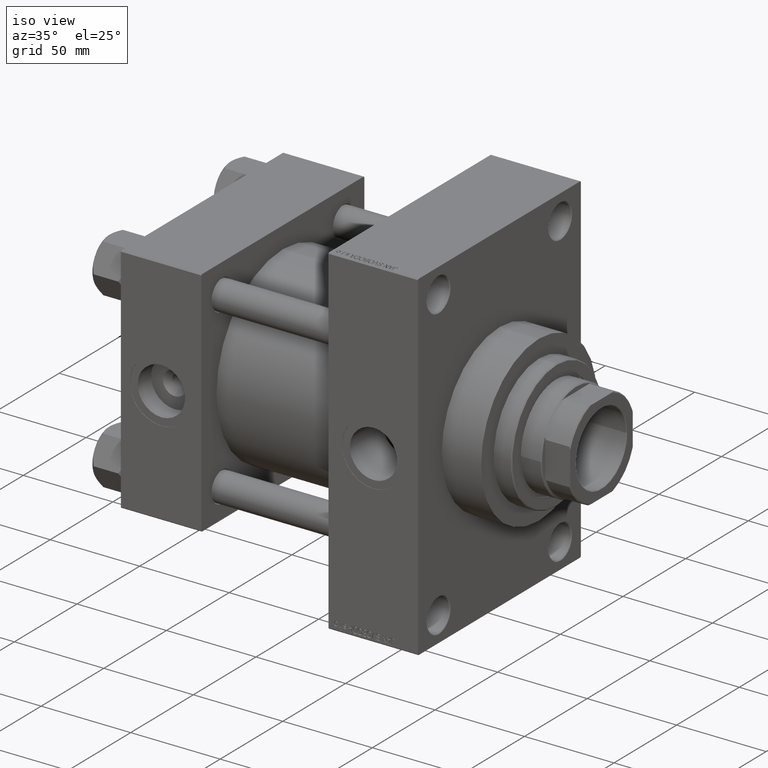
[diagram: clean part render]
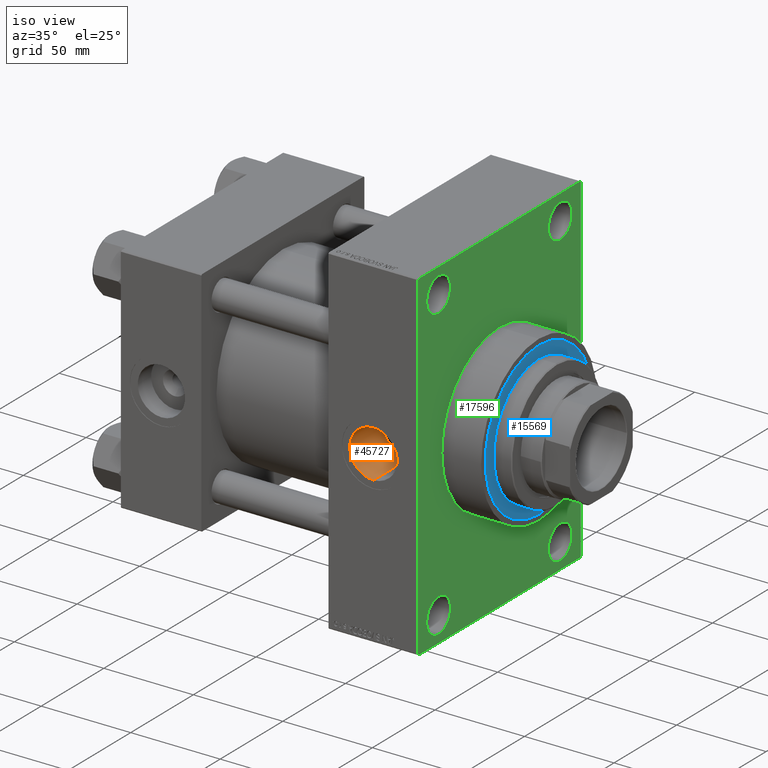
[diagram: same view with three faces highlighted in distinct colors, each labeled with its STEP entity id]
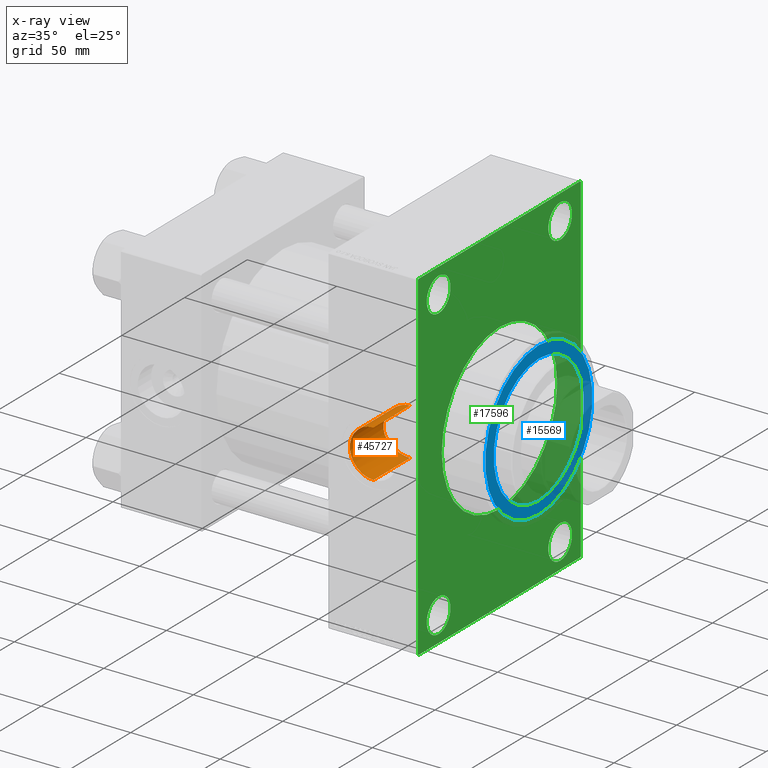
[diagram: x-ray of the same camera — body ghosted, the three highlighted faces saturated]
A machine part, iso view with three faces highlighted in distinct colors.
The next image is the same camera in x-ray (body ghosted, the three faces saturated) — at least one of them is partly hidden behind the body in this view.
Their STEP definitions:

[orange] entity #45727 — the highlighted cylindrical surface (edge-blend (fillet) strip) has radius 13.22 mm, axis along (-0, -1, -0).
#501 = CARTESIAN_POINT ( 'NONE',  ( 141.0000000000000000, -64.80000000000001137, 1.734723475976770117E-17 ) ) ;
#2172 = CARTESIAN_POINT ( 'NONE',  ( 130.5146734941103261, -37.13629440160352146, 8.063019086415920356 ) ) ;
#2398 = CARTESIAN_POINT ( 'NONE',  ( 134.3703066741389591, -36.23592758460590346, 11.44569766195575689 ) ) ;
#2654 = CARTESIAN_POINT ( 'NONE',  ( 138.8280194967578041, -35.68986785518497129, 13.04766972071312203 ) ) ;
#2886 = CARTESIAN_POINT ( 'NONE',  ( 140.1190169097856995, -35.62627681922432288, -13.22000000000001307 ) ) ;
#3116 = CARTESIAN_POINT ( 'NONE',  ( 129.1278933428737901, -37.55103809794253067, -5.878955579267242548 ) ) ;
#3345 = ORIENTED_EDGE ( 'NONE', *, *, #17284, .T. ) ;
#3450 = VERTEX_POINT ( 'NONE', #31617 ) ;
#5802 = CARTESIAN_POINT ( 'NONE',  ( 127.7804093929018308, -37.99985757437788436, -0.8764856372642163551 ) ) ;
#6026 = CARTESIAN_POINT ( 'NONE',  ( 127.8879070610560404, -37.96257270537368100, 1.741974378403175594 ) ) ;
#6258 = CARTESIAN_POINT ( 'NONE',  ( 136.7183503207495221, -35.87400679081884647, 12.53704956190560260 ) ) ;
#6444 = AXIS2_PLACEMENT_3D ( 'NONE', #22706, #22952, #18611 ) ;
#6450 = VECTOR ( 'NONE', #45626, 1000.000000000000000 ) ;
#7778 = VERTEX_POINT ( 'NONE', #9316 ) ;
#8417 = ORIENTED_EDGE ( 'NONE', *, *, #35617, .F. ) ;
#9316 = CARTESIAN_POINT ( 'NONE',  ( 141.0000000000000000, -64.80000000000001137, 13.22000000000001307 ) ) ;
#9409 = CARTESIAN_POINT ( 'NONE',  ( 128.9638084280566090, -37.60420653300685956, 5.485313167481641550 ) ) ;
#9648 = CARTESIAN_POINT ( 'NONE',  ( 128.2085236598010738, -37.85271147533390490, 3.449596577529353336 ) ) ;
#9877 = CARTESIAN_POINT ( 'NONE',  ( 135.1354249478940801, -36.10377895544482385, 11.85595158652744274 ) ) ;
#10112 = CARTESIAN_POINT ( 'NONE',  ( 137.9800961387033453, -35.75153119464909679, -12.87774046841736109 ) ) ;
#10131 = EDGE_CURVE ( 'NONE', #7778, #3450, #15648, .T. ) ;
#10221 = VERTEX_POINT ( 'NONE', #26316 ) ;
#10351 = CARTESIAN_POINT ( 'NONE',  ( 136.7252804533873416, -35.87942272375020991, -12.51739683785893753 ) ) ;
#10916 = EDGE_LOOP ( 'NONE', ( #3345, #43199, #22683, #8417 ) ) ;
#11015 = CARTESIAN_POINT ( 'NONE',  ( 141.0000000000000000, 65.00100000000004741, -13.22000000000000064 ) ) ;
#11048 = CARTESIAN_POINT ( 'NONE',  ( 141.0000000000000000, -35.62627681922430867, 13.22000000000001663 ) ) ;
#11580 = DIRECTION ( 'NONE',  ( 0.000000000000000000, 0.000000000000000000, -1.000000000000000000 ) ) ;
#13016 = CARTESIAN_POINT ( 'NONE',  ( 127.8659173751080260, -37.96985467156528671, -1.739185598572455582 ) ) ;
#13250 = CARTESIAN_POINT ( 'NONE',  ( 128.6313985517845992, -37.71192633933637239, -4.687350745410441277 ) ) ;
#13496 = CARTESIAN_POINT ( 'NONE',  ( 132.9355450113205563, -36.52618442471469962, -10.48420518286915204 ) ) ;
#13725 = CARTESIAN_POINT ( 'NONE',  ( 140.1323834192861568, -35.63420210679617384, 13.19870196333621593 ) ) ;
#13960 = CARTESIAN_POINT ( 'NONE',  ( 130.5007977352728972, -37.13827399726411471, -8.080194625558590360 ) ) ;
#15648 = CIRCLE ( 'NONE', #17211, 13.22000000000001307 ) ;
#16880 = CARTESIAN_POINT ( 'NONE',  ( 131.0624114887139910, -36.98537488477167301, 8.729185718231464719 ) ) ;
#17211 = AXIS2_PLACEMENT_3D ( 'NONE', #501, #33810, #11580 ) ;
#17284 = EDGE_CURVE ( 'NONE', #30084, #10221, #17657, .T. ) ;
#17363 = CARTESIAN_POINT ( 'NONE',  ( 139.2646285187691149, -35.66588167191071079, 13.11285544304653961 ) ) ;
#17590 = CARTESIAN_POINT ( 'NONE',  ( 135.1149856990954277, -36.10041443999153898, -11.86944143279898078 ) ) ;
#17657 = B_SPLINE_CURVE_WITH_KNOTS ( 'NONE', 3,
 ( #35250, #2886, #42494, #10112, #17825, #10351, #31627, #17590, #46362, #32333, #13496, #42739, #32105, #21454, #13960, #43196, #3116, #13250, #28236, #24136, #47072, #13016, #5802, #27757, #43441, #6026, #25082, #9648, #42968, #9409, #46841, #28467, #38881, #20519, #2172, #16880, #24372, #20747, #20976, #35484, #2398, #9877, #24602, #6258, #35724, #2654, #17363, #13725, #43907, #11048 ),
 .UNSPECIFIED., .F., .F.,
 ( 4, 2, 2, 2, 2, 2, 2, 2, 2, 2, 2, 2, 2, 2, 2, 2, 2, 2, 2, 2, 2, 2, 2, 2, 4 ),
 ( 0.000000000000000000, 0.002603679160011544615, 0.003905518740017275940, 0.005207358320023007699, 0.007811037480034393153, 0.009112877060040052921, 0.01041471664004571356, 0.01301839580005703656, 0.01562207496006835436, 0.01692391454007401499, 0.01822575412007967216, 0.02082943328009097261, 0.02213127286009661937, 0.02343311244010226613, 0.02603679160011354923, 0.02733863118011919252, 0.02864047076012483581, 0.02994231034013047910, 0.03124414992013611544, 0.03384782908014733610, 0.03514966866015294816, 0.03645150824015856023, 0.03905518740016986068, 0.04035702698017551437, 0.04165886656018116807 ),
 .UNSPECIFIED. ) ;
#17825 = CARTESIAN_POINT ( 'NONE',  ( 137.5592282748354762, -35.78964456168937858, -12.77182605322910369 ) ) ;
#18611 = DIRECTION ( 'NONE',  ( 0.000000000000000000, 0.000000000000000000, -1.000000000000000000 ) ) ;
#20519 = CARTESIAN_POINT ( 'NONE',  ( 130.2584771046386152, -37.20967342860690508, 7.718296880639930357 ) ) ;
#20747 = CARTESIAN_POINT ( 'NONE',  ( 132.2670437899983824, -36.67628623072270955, 9.962063418159173622 ) ) ;
#20976 = CARTESIAN_POINT ( 'NONE',  ( 132.9275471974935385, -36.52269620593962429, 10.50439372023729234 ) ) ;
#21454 = CARTESIAN_POINT ( 'NONE',  ( 131.0460108879551910, -36.98609984712960141, -8.741719852796377310 ) ) ;
#22683 = ORIENTED_EDGE ( 'NONE', *, *, #10131, .T. ) ;
#22706 = CARTESIAN_POINT ( 'NONE',  ( 141.0000000000000000, 65.00100000000004741, 1.127578933002305158E-14 ) ) ;
#22952 = DIRECTION ( 'NONE',  ( -0.000000000000000000, -1.000000000000000000, -8.673617379884036705E-17 ) ) ;
#24136 = CARTESIAN_POINT ( 'NONE',  ( 128.2305168345344839, -37.84543491856000941, -3.449317642241737758 ) ) ;
#24372 = CARTESIAN_POINT ( 'NONE',  ( 131.3546910918036019, -36.90768274780409541, 9.051028891445188407 ) ) ;
#24602 = CARTESIAN_POINT ( 'NONE',  ( 135.5255472491772366, -36.04228478792601464, 12.04093854325258128 ) ) ;
#25082 = CARTESIAN_POINT ( 'NONE',  ( 127.9526291846586332, -37.94020374169429033, 2.173202863142693175 ) ) ;
#25508 = LINE ( 'NONE', #11015, #38044 ) ;
#26316 = CARTESIAN_POINT ( 'NONE',  ( 141.0000000000000000, -35.62627681922430867, 13.22000000000001663 ) ) ;
#26330 = CYLINDRICAL_SURFACE ( 'NONE', #6444, 13.22000000000001307 ) ;
#27757 = CARTESIAN_POINT ( 'NONE',  ( 127.7797974820591378, -38.00007045491893365, 0.4289476745844880701 ) ) ;
#28236 = CARTESIAN_POINT ( 'NONE',  ( 128.4847918445978507, -37.76039829020477612, -4.281011251695357345 ) ) ;
#28467 = CARTESIAN_POINT ( 'NONE',  ( 129.5591154635323505, -37.41774724086690895, 6.637803198152150586 ) ) ;
#30084 = VERTEX_POINT ( 'NONE', #41085 ) ;
#31617 = CARTESIAN_POINT ( 'NONE',  ( 141.0000000000000000, -64.80000000000001137, -13.22000000000001307 ) ) ;
#31627 = CARTESIAN_POINT ( 'NONE',  ( 136.3129323786545228, -35.93109983345054559, -12.36878956992393164 ) ) ;
#32105 = CARTESIAN_POINT ( 'NONE',  ( 131.9528167310558047, -36.75591987376518688, -9.648816829280495000 ) ) ;
#32333 = CARTESIAN_POINT ( 'NONE',  ( 133.2847968343886578, -36.45041972526050245, -10.74381775041934084 ) ) ;
#32692 = EDGE_CURVE ( 'NONE', #10221, #7778, #34271, .T. ) ;
#33810 = DIRECTION ( 'NONE',  ( 0.000000000000000000, -1.000000000000000000, -8.673617379884036705E-17 ) ) ;
#34271 = LINE ( 'NONE', #45145, #6450 ) ;
#35250 = CARTESIAN_POINT ( 'NONE',  ( 141.0000000000000000, -35.62627681922430867, -13.22000000000000952 ) ) ;
#35484 = CARTESIAN_POINT ( 'NONE',  ( 133.9983494079742457, -36.30609483252747083, 11.22184852895458995 ) ) ;
#35617 = EDGE_CURVE ( 'NONE', #30084, #3450, #25508, .T. ) ;
#35724 = CARTESIAN_POINT ( 'NONE',  ( 137.5432500831173570, -35.78338990152104770, 12.78993423756524095 ) ) ;
#38044 = VECTOR ( 'NONE', #40720, 1000.000000000000000 ) ;
#38881 = CARTESIAN_POINT ( 'NONE',  ( 129.7806976747284011, -37.35039795260349393, 7.005688844319585940 ) ) ;
#40720 = DIRECTION ( 'NONE',  ( -0.000000000000000000, -1.000000000000000000, -8.673617379884036705E-17 ) ) ;
#41085 = CARTESIAN_POINT ( 'NONE',  ( 141.0000000000000000, -35.62627681922430867, -13.22000000000000952 ) ) ;
#42494 = CARTESIAN_POINT ( 'NONE',  ( 139.2542619371798764, -35.65896037612355229, -13.13283191964227825 ) ) ;
#42739 = CARTESIAN_POINT ( 'NONE',  ( 132.2700749203823420, -36.67885366610533282, -9.936921086795493352 ) ) ;
#42968 = CARTESIAN_POINT ( 'NONE',  ( 128.4608207378580005, -37.76720776348442143, 4.277622685480487519 ) ) ;
#43196 = CARTESIAN_POINT ( 'NONE',  ( 129.5338690647041062, -37.42312528271202865, -6.637065221708205343 ) ) ;
#43199 = ORIENTED_EDGE ( 'NONE', *, *, #32692, .T. ) ;
#43441 = CARTESIAN_POINT ( 'NONE',  ( 127.8011782222810098, -37.99261561792328479, 0.8675019622622502924 ) ) ;
#43907 = CARTESIAN_POINT ( 'NONE',  ( 140.5662145594180572, -35.62627681922430156, 13.22000000000001485 ) ) ;
#44947 = FACE_OUTER_BOUND ( 'NONE', #10916, .T. ) ;
#45145 = CARTESIAN_POINT ( 'NONE',  ( 141.0000000000000000, 65.00100000000004741, 13.22000000000002551 ) ) ;
#45626 = DIRECTION ( 'NONE',  ( -0.000000000000000000, -1.000000000000000000, -8.673617379884036705E-17 ) ) ;
#45727 = ADVANCED_FACE ( 'NONE', ( #44947 ), #26330, .F. ) ;
#46362 = CARTESIAN_POINT ( 'NONE',  ( 134.3585349364250305, -36.23326111785536341, -11.46305634518355276 ) ) ;
#46841 = CARTESIAN_POINT ( 'NONE',  ( 129.1509446893830955, -37.54456127535220133, 5.878278533731177369 ) ) ;
#47072 = CARTESIAN_POINT ( 'NONE',  ( 128.1226175642507599, -37.88208168438102064, -3.021844608744971072 ) ) ;

[blue] entity #15569 — the highlighted planar face has unit normal (1, -0, -0).
#4106 = VERTEX_POINT ( 'NONE', #37184 ) ;
#4117 = ORIENTED_EDGE ( 'NONE', *, *, #21704, .F. ) ;
#4438 = AXIS2_PLACEMENT_3D ( 'NONE', #19914, #27624, #34156 ) ;
#5083 = DIRECTION ( 'NONE',  ( 0.000000000000000000, 0.000000000000000000, 1.000000000000000000 ) ) ;
#5422 = FACE_OUTER_BOUND ( 'NONE', #15216, .T. ) ;
#5792 = EDGE_LOOP ( 'NONE', ( #42813, #4117 ) ) ;
#7621 = VERTEX_POINT ( 'NONE', #43151 ) ;
#7970 = DIRECTION ( 'NONE',  ( 1.000000000000000000, 0.000000000000000000, 0.000000000000000000 ) ) ;
#8326 = DIRECTION ( 'NONE',  ( 1.000000000000000000, 0.000000000000000000, 0.000000000000000000 ) ) ;
#9134 = AXIS2_PLACEMENT_3D ( 'NONE', #37537, #41407, #8326 ) ;
#12221 = DIRECTION ( 'NONE',  ( 0.000000000000000000, 0.000000000000000000, 1.000000000000000000 ) ) ;
#13788 = EDGE_CURVE ( 'NONE', #33163, #16750, #42865, .T. ) ;
#15216 = EDGE_LOOP ( 'NONE', ( #21073, #32828 ) ) ;
#15569 = ADVANCED_FACE ( 'NONE', ( #20392, #5422 ), #19416, .T. ) ;
#16750 = VERTEX_POINT ( 'NONE', #23238 ) ;
#17260 = AXIS2_PLACEMENT_3D ( 'NONE', #41042, #5083, #7970 ) ;
#18102 = EDGE_CURVE ( 'NONE', #4106, #7621, #36906, .T. ) ;
#19416 = PLANE ( 'NONE',  #4438 ) ;
#19914 = CARTESIAN_POINT ( 'NONE',  ( 0.000000000000000000, 0.000000000000000000, 43.25999999999999801 ) ) ;
#20392 = FACE_BOUND ( 'NONE', #5792, .T. ) ;
#21073 = ORIENTED_EDGE ( 'NONE', *, *, #18102, .T. ) ;
#21704 = EDGE_CURVE ( 'NONE', #16750, #33163, #26072, .T. ) ;
#22019 = AXIS2_PLACEMENT_3D ( 'NONE', #45337, #12221, #26957 ) ;
#23238 = CARTESIAN_POINT ( 'NONE',  ( 36.00000000000000000, 4.408728476930470856E-15, 43.25999999999999801 ) ) ;
#23716 = CARTESIAN_POINT ( 'NONE',  ( -36.00000000000000000, 0.000000000000000000, 43.25999999999999801 ) ) ;
#26072 = CIRCLE ( 'NONE', #9134, 36.00000000000000000 ) ;
#26957 = DIRECTION ( 'NONE',  ( 1.000000000000000000, 0.000000000000000000, 0.000000000000000000 ) ) ;
#27624 = DIRECTION ( 'NONE',  ( 0.000000000000000000, 0.000000000000000000, 1.000000000000000000 ) ) ;
#31525 = AXIS2_PLACEMENT_3D ( 'NONE', #43530, #46690, #46219 ) ;
#32828 = ORIENTED_EDGE ( 'NONE', *, *, #37504, .T. ) ;
#33163 = VERTEX_POINT ( 'NONE', #23716 ) ;
#34156 = DIRECTION ( 'NONE',  ( 1.000000000000000000, 0.000000000000000000, -0.000000000000000000 ) ) ;
#36906 = CIRCLE ( 'NONE', #31525, 42.75000000000000000 ) ;
#37184 = CARTESIAN_POINT ( 'NONE',  ( -42.75000000000000000, 0.000000000000000000, 43.25999999999999801 ) ) ;
#37504 = EDGE_CURVE ( 'NONE', #7621, #4106, #45016, .T. ) ;
#37537 = CARTESIAN_POINT ( 'NONE',  ( 0.000000000000000000, 0.000000000000000000, 43.25999999999999801 ) ) ;
#41042 = CARTESIAN_POINT ( 'NONE',  ( 0.000000000000000000, 0.000000000000000000, 43.25999999999999801 ) ) ;
#41407 = DIRECTION ( 'NONE',  ( 0.000000000000000000, 0.000000000000000000, 1.000000000000000000 ) ) ;
#42813 = ORIENTED_EDGE ( 'NONE', *, *, #13788, .F. ) ;
#42865 = CIRCLE ( 'NONE', #22019, 36.00000000000000000 ) ;
#43151 = CARTESIAN_POINT ( 'NONE',  ( 42.75000000000000000, 5.235365066354935472E-15, 43.25999999999999801 ) ) ;
#43530 = CARTESIAN_POINT ( 'NONE',  ( 0.000000000000000000, 0.000000000000000000, 43.25999999999999801 ) ) ;
#45016 = CIRCLE ( 'NONE', #17260, 42.75000000000000000 ) ;
#45337 = CARTESIAN_POINT ( 'NONE',  ( 0.000000000000000000, 0.000000000000000000, 43.25999999999999801 ) ) ;
#46219 = DIRECTION ( 'NONE',  ( 1.000000000000000000, 0.000000000000000000, 0.000000000000000000 ) ) ;
#46690 = DIRECTION ( 'NONE',  ( 0.000000000000000000, 0.000000000000000000, 1.000000000000000000 ) ) ;

[green] entity #17596 — the highlighted planar face has unit normal (-1, 0, 0).
#400 = CIRCLE ( 'NONE', #30456, 9.500000000000063949 ) ;
#854 = AXIS2_PLACEMENT_3D ( 'NONE', #27693, #23611, #38337 ) ;
#1346 = ORIENTED_EDGE ( 'NONE', *, *, #26318, .T. ) ;
#1433 = DIRECTION ( 'NONE',  ( -1.000000000000000000, 0.000000000000000000, -0.000000000000000000 ) ) ;
#1482 = ORIENTED_EDGE ( 'NONE', *, *, #23398, .T. ) ;
#1556 = EDGE_CURVE ( 'NONE', #25241, #31278, #7012, .T. ) ;
#2469 = EDGE_CURVE ( 'NONE', #24213, #47685, #30827, .T. ) ;
#2991 = VERTEX_POINT ( 'NONE', #45225 ) ;
#3011 = DIRECTION ( 'NONE',  ( 0.000000000000000000, 0.7071067811865474617, -0.7071067811865474617 ) ) ;
#3510 = CARTESIAN_POINT ( 'NONE',  ( 165.9999999999999716, -64.50000000000001421, -95.00000000000002842 ) ) ;
#3668 = ORIENTED_EDGE ( 'NONE', *, *, #25124, .F. ) ;
#3763 = PLANE ( 'NONE',  #14516 ) ;
#3854 = CARTESIAN_POINT ( 'NONE',  ( 165.9999999999999716, -65.00000000000001421, 94.49999999999997158 ) ) ;
#4371 = EDGE_CURVE ( 'NONE', #47159, #43591, #4812, .T. ) ;
#4812 = CIRCLE ( 'NONE', #39526, 9.500000000000063949 ) ;
#4930 = AXIS2_PLACEMENT_3D ( 'NONE', #28042, #24644, #20094 ) ;
#5078 = ORIENTED_EDGE ( 'NONE', *, *, #28044, .T. ) ;
#5496 = DIRECTION ( 'NONE',  ( -0.000000000000000000, 0.7071067811865573427, 0.7071067811865378028 ) ) ;
#6028 = DIRECTION ( 'NONE',  ( -1.000000000000000000, 0.000000000000000000, -0.000000000000000000 ) ) ;
#6153 = ORIENTED_EDGE ( 'NONE', *, *, #36599, .T. ) ;
#6267 = VECTOR ( 'NONE', #3011, 1000.000000000000114 ) ;
#6680 = CARTESIAN_POINT ( 'NONE',  ( 165.9999999999999716, 0.000000000000000000, 0.000000000000000000 ) ) ;
#6830 = DIRECTION ( 'NONE',  ( 0.000000000000000000, 0.000000000000000000, 1.000000000000000000 ) ) ;
#6851 = AXIS2_PLACEMENT_3D ( 'NONE', #17954, #29534, #47193 ) ;
#7012 = CIRCLE ( 'NONE', #33996, 9.500000000000063949 ) ;
#7051 = ORIENTED_EDGE ( 'NONE', *, *, #34908, .T. ) ;
#7260 = EDGE_CURVE ( 'NONE', #35101, #15503, #30994, .T. ) ;
#7334 = CARTESIAN_POINT ( 'NONE',  ( 165.9999999999999716, 64.99999999999997158, 94.99999999999997158 ) ) ;
#8786 = DIRECTION ( 'NONE',  ( 0.000000000000000000, -1.000000000000000000, -1.067522139062650425E-16 ) ) ;
#9256 = EDGE_LOOP ( 'NONE', ( #42509, #5078, #10704, #25933, #9753, #7051, #1346, #1482 ) ) ;
#9281 = VERTEX_POINT ( 'NONE', #24162 ) ;
#9521 = EDGE_LOOP ( 'NONE', ( #17453, #6153 ) ) ;
#9753 = ORIENTED_EDGE ( 'NONE', *, *, #9779, .F. ) ;
#9779 = EDGE_CURVE ( 'NONE', #38706, #43133, #11174, .T. ) ;
#9944 = CARTESIAN_POINT ( 'NONE',  ( 165.9999999999999716, -48.50000000000000000, 71.49999999999994316 ) ) ;
#10145 = ORIENTED_EDGE ( 'NONE', *, *, #1556, .T. ) ;
#10704 = ORIENTED_EDGE ( 'NONE', *, *, #7260, .F. ) ;
#11146 = CARTESIAN_POINT ( 'NONE',  ( 165.9999999999999716, 48.50000000000000711, -90.50000000000008527 ) ) ;
#11174 = LINE ( 'NONE', #7334, #13347 ) ;
#11846 = CARTESIAN_POINT ( 'NONE',  ( 165.9999999999999716, -65.00000000000001421, -94.50000000000002842 ) ) ;
#12232 = LINE ( 'NONE', #31336, #37236 ) ;
#13139 = DIRECTION ( 'NONE',  ( 1.000000000000000000, 0.000000000000000000, 0.000000000000000000 ) ) ;
#13177 = CIRCLE ( 'NONE', #854, 46.00000000000000000 ) ;
#13347 = VECTOR ( 'NONE', #22052, 1000.000000000000000 ) ;
#13904 = AXIS2_PLACEMENT_3D ( 'NONE', #46254, #13139, #27875 ) ;
#14205 = CARTESIAN_POINT ( 'NONE',  ( 165.9999999999999716, 48.50000000000000711, -81.00000000000001421 ) ) ;
#14484 = EDGE_CURVE ( 'NONE', #29895, #18004, #28336, .T. ) ;
#14516 = AXIS2_PLACEMENT_3D ( 'NONE', #6680, #47497, #36133 ) ;
#14698 = VERTEX_POINT ( 'NONE', #21875 ) ;
#14762 = DIRECTION ( 'NONE',  ( -1.000000000000000000, 0.000000000000000000, -0.000000000000000000 ) ) ;
#14877 = CARTESIAN_POINT ( 'NONE',  ( 165.9999999999999716, 64.99999999999997158, 94.49999999999997158 ) ) ;
#14930 = CIRCLE ( 'NONE', #4930, 9.500000000000063949 ) ;
#15446 = CARTESIAN_POINT ( 'NONE',  ( 165.9999999999999716, 48.50000000000000711, 81.00000000000000000 ) ) ;
#15503 = VERTEX_POINT ( 'NONE', #3510 ) ;
#15548 = CIRCLE ( 'NONE', #47226, 9.500000000000063949 ) ;
#16605 = CARTESIAN_POINT ( 'NONE',  ( 165.9999999999999716, 64.99999999999998579, -94.50000000000002842 ) ) ;
#16758 = AXIS2_PLACEMENT_3D ( 'NONE', #22629, #18534, #30365 ) ;
#17103 = CARTESIAN_POINT ( 'NONE',  ( 165.9999999999999716, 48.50000000000000711, 81.00000000000000000 ) ) ;
#17415 = LINE ( 'NONE', #32157, #27815 ) ;
#17453 = ORIENTED_EDGE ( 'NONE', *, *, #14484, .T. ) ;
#17596 = ADVANCED_FACE ( 'NONE', ( #24547, #39278, #35661, #21398, #37069, #47255 ), #3763, .F. ) ;
#17954 = CARTESIAN_POINT ( 'NONE',  ( 165.9999999999999716, 48.50000000000000711, -81.00000000000001421 ) ) ;
#18004 = VERTEX_POINT ( 'NONE', #20650 ) ;
#18534 = DIRECTION ( 'NONE',  ( -1.000000000000000000, 0.000000000000000000, -0.000000000000000000 ) ) ;
#18658 = VECTOR ( 'NONE', #8786, 1000.000000000000000 ) ;
#18759 = CIRCLE ( 'NONE', #27259, 9.500000000000063949 ) ;
#19067 = CARTESIAN_POINT ( 'NONE',  ( 165.9999999999999716, 5.633375276077824704E-15, -46.00000000000000000 ) ) ;
#19277 = DIRECTION ( 'NONE',  ( 0.000000000000000000, 0.000000000000000000, 1.000000000000000000 ) ) ;
#19892 = CARTESIAN_POINT ( 'NONE',  ( 165.9999999999999716, 64.99999999999998579, -95.00000000000001421 ) ) ;
#19997 = LINE ( 'NONE', #16605, #31545 ) ;
#20094 = DIRECTION ( 'NONE',  ( 0.000000000000000000, 0.000000000000000000, 1.000000000000000000 ) ) ;
#20650 = CARTESIAN_POINT ( 'NONE',  ( 165.9999999999999716, -48.49999999999999289, -71.49999999999995737 ) ) ;
#21398 = FACE_BOUND ( 'NONE', #30813, .T. ) ;
#21875 = CARTESIAN_POINT ( 'NONE',  ( 165.9999999999999716, 0.000000000000000000, 46.00000000000000000 ) ) ;
#21878 = EDGE_CURVE ( 'NONE', #43591, #47159, #44633, .T. ) ;
#21950 = CARTESIAN_POINT ( 'NONE',  ( 165.9999999999999716, 48.50000000000000711, -71.49999999999995737 ) ) ;
#21975 = LINE ( 'NONE', #3854, #40043 ) ;
#22052 = DIRECTION ( 'NONE',  ( 0.000000000000000000, 7.304098846218135653E-17, -1.000000000000000000 ) ) ;
#22102 = ORIENTED_EDGE ( 'NONE', *, *, #4371, .T. ) ;
#22235 = EDGE_CURVE ( 'NONE', #35101, #43133, #19997, .T. ) ;
#22629 = CARTESIAN_POINT ( 'NONE',  ( 165.9999999999999716, -48.49999999999999289, -81.00000000000001421 ) ) ;
#23398 = EDGE_CURVE ( 'NONE', #45465, #24213, #21975, .T. ) ;
#23611 = DIRECTION ( 'NONE',  ( 1.000000000000000000, 0.000000000000000000, 0.000000000000000000 ) ) ;
#23666 = DIRECTION ( 'NONE',  ( 0.000000000000000000, 0.000000000000000000, 1.000000000000000000 ) ) ;
#23845 = CARTESIAN_POINT ( 'NONE',  ( 165.9999999999999716, 64.99999999999998579, -94.50000000000002842 ) ) ;
#24162 = CARTESIAN_POINT ( 'NONE',  ( 165.9999999999999716, -48.50000000000000000, 90.50000000000007105 ) ) ;
#24213 = VERTEX_POINT ( 'NONE', #43501 ) ;
#24547 = FACE_BOUND ( 'NONE', #47177, .T. ) ;
#24644 = DIRECTION ( 'NONE',  ( -1.000000000000000000, 0.000000000000000000, -0.000000000000000000 ) ) ;
#24869 = CARTESIAN_POINT ( 'NONE',  ( 165.9999999999999716, 64.49999999999998579, -95.00000000000001421 ) ) ;
#25124 = EDGE_CURVE ( 'NONE', #14698, #34348, #32404, .T. ) ;
#25241 = VERTEX_POINT ( 'NONE', #37434 ) ;
#25933 = ORIENTED_EDGE ( 'NONE', *, *, #22235, .T. ) ;
#26031 = ORIENTED_EDGE ( 'NONE', *, *, #26872, .F. ) ;
#26056 = DIRECTION ( 'NONE',  ( -0.000000000000000000, -0.7071067811865378028, -0.7071067811865573427 ) ) ;
#26318 = EDGE_CURVE ( 'NONE', #2991, #45465, #17415, .T. ) ;
#26872 = EDGE_CURVE ( 'NONE', #34348, #14698, #13177, .T. ) ;
#27259 = AXIS2_PLACEMENT_3D ( 'NONE', #47423, #14762, #6830 ) ;
#27407 = VERTEX_POINT ( 'NONE', #9944 ) ;
#27693 = CARTESIAN_POINT ( 'NONE',  ( 165.9999999999999716, 0.000000000000000000, 0.000000000000000000 ) ) ;
#27815 = VECTOR ( 'NONE', #36013, 1000.000000000000000 ) ;
#27875 = DIRECTION ( 'NONE',  ( 0.000000000000000000, 0.000000000000000000, -1.000000000000000000 ) ) ;
#28042 = CARTESIAN_POINT ( 'NONE',  ( 165.9999999999999716, -48.49999999999999289, -81.00000000000001421 ) ) ;
#28044 = EDGE_CURVE ( 'NONE', #47685, #15503, #35612, .T. ) ;
#28336 = CIRCLE ( 'NONE', #16758, 9.500000000000063949 ) ;
#28898 = ORIENTED_EDGE ( 'NONE', *, *, #29710, .T. ) ;
#29534 = DIRECTION ( 'NONE',  ( -1.000000000000000000, 0.000000000000000000, -0.000000000000000000 ) ) ;
#29710 = EDGE_CURVE ( 'NONE', #27407, #9281, #15548, .T. ) ;
#29895 = VERTEX_POINT ( 'NONE', #40715 ) ;
#30365 = DIRECTION ( 'NONE',  ( 0.000000000000000000, 0.000000000000000000, 1.000000000000000000 ) ) ;
#30445 = DIRECTION ( 'NONE',  ( -1.000000000000000000, 0.000000000000000000, -0.000000000000000000 ) ) ;
#30456 = AXIS2_PLACEMENT_3D ( 'NONE', #17103, #42030, #23666 ) ;
#30813 = EDGE_LOOP ( 'NONE', ( #39858, #10145 ) ) ;
#30827 = LINE ( 'NONE', #45565, #37903 ) ;
#30994 = LINE ( 'NONE', #19892, #18658 ) ;
#31278 = VERTEX_POINT ( 'NONE', #47235 ) ;
#31336 = CARTESIAN_POINT ( 'NONE',  ( 165.9999999999999716, 64.49999999999997158, 94.99999999999997158 ) ) ;
#31545 = VECTOR ( 'NONE', #5496, 1000.000000000000000 ) ;
#31630 = ORIENTED_EDGE ( 'NONE', *, *, #36379, .T. ) ;
#31707 = CARTESIAN_POINT ( 'NONE',  ( 165.9999999999999716, -64.50000000000002842, 94.99999999999997158 ) ) ;
#32157 = CARTESIAN_POINT ( 'NONE',  ( 165.9999999999999716, 64.99999999999997158, 94.99999999999997158 ) ) ;
#32256 = EDGE_LOOP ( 'NONE', ( #43282, #22102 ) ) ;
#32404 = CIRCLE ( 'NONE', #13904, 46.00000000000000000 ) ;
#33996 = AXIS2_PLACEMENT_3D ( 'NONE', #15446, #30445, #45185 ) ;
#34266 = CARTESIAN_POINT ( 'NONE',  ( 165.9999999999999716, -48.50000000000000000, 81.00000000000000000 ) ) ;
#34348 = VERTEX_POINT ( 'NONE', #19067 ) ;
#34908 = EDGE_CURVE ( 'NONE', #38706, #2991, #12232, .T. ) ;
#35101 = VERTEX_POINT ( 'NONE', #24869 ) ;
#35612 = LINE ( 'NONE', #47205, #6267 ) ;
#35661 = FACE_BOUND ( 'NONE', #32256, .T. ) ;
#36013 = DIRECTION ( 'NONE',  ( 0.000000000000000000, -1.000000000000000000, 0.000000000000000000 ) ) ;
#36133 = DIRECTION ( 'NONE',  ( -0.000000000000000000, 0.000000000000000000, 1.000000000000000000 ) ) ;
#36379 = EDGE_CURVE ( 'NONE', #9281, #27407, #18759, .T. ) ;
#36599 = EDGE_CURVE ( 'NONE', #18004, #29895, #14930, .T. ) ;
#37069 = FACE_BOUND ( 'NONE', #45063, .T. ) ;
#37236 = VECTOR ( 'NONE', #37837, 1000.000000000000114 ) ;
#37434 = CARTESIAN_POINT ( 'NONE',  ( 165.9999999999999716, 48.50000000000000711, 90.50000000000007105 ) ) ;
#37837 = DIRECTION ( 'NONE',  ( 0.000000000000000000, -0.7071067811865474617, 0.7071067811865474617 ) ) ;
#37903 = VECTOR ( 'NONE', #38554, 1000.000000000000000 ) ;
#38337 = DIRECTION ( 'NONE',  ( 0.000000000000000000, 0.000000000000000000, -1.000000000000000000 ) ) ;
#38554 = DIRECTION ( 'NONE',  ( 0.000000000000000000, 0.000000000000000000, -1.000000000000000000 ) ) ;
#38706 = VERTEX_POINT ( 'NONE', #14877 ) ;
#39278 = FACE_BOUND ( 'NONE', #9521, .T. ) ;
#39526 = AXIS2_PLACEMENT_3D ( 'NONE', #14205, #6028, #42970 ) ;
#39858 = ORIENTED_EDGE ( 'NONE', *, *, #40453, .T. ) ;
#40043 = VECTOR ( 'NONE', #26056, 1000.000000000000000 ) ;
#40453 = EDGE_CURVE ( 'NONE', #31278, #25241, #400, .T. ) ;
#40715 = CARTESIAN_POINT ( 'NONE',  ( 165.9999999999999716, -48.49999999999999289, -90.50000000000008527 ) ) ;
#42030 = DIRECTION ( 'NONE',  ( -1.000000000000000000, 0.000000000000000000, -0.000000000000000000 ) ) ;
#42509 = ORIENTED_EDGE ( 'NONE', *, *, #2469, .T. ) ;
#42970 = DIRECTION ( 'NONE',  ( 0.000000000000000000, 0.000000000000000000, 1.000000000000000000 ) ) ;
#43133 = VERTEX_POINT ( 'NONE', #23845 ) ;
#43282 = ORIENTED_EDGE ( 'NONE', *, *, #21878, .T. ) ;
#43501 = CARTESIAN_POINT ( 'NONE',  ( 165.9999999999999716, -65.00000000000001421, 94.49999999999997158 ) ) ;
#43591 = VERTEX_POINT ( 'NONE', #11146 ) ;
#44633 = CIRCLE ( 'NONE', #6851, 9.500000000000063949 ) ;
#45063 = EDGE_LOOP ( 'NONE', ( #3668, #26031 ) ) ;
#45185 = DIRECTION ( 'NONE',  ( 0.000000000000000000, 0.000000000000000000, 1.000000000000000000 ) ) ;
#45225 = CARTESIAN_POINT ( 'NONE',  ( 165.9999999999999716, 64.49999999999997158, 94.99999999999997158 ) ) ;
#45465 = VERTEX_POINT ( 'NONE', #31707 ) ;
#45565 = CARTESIAN_POINT ( 'NONE',  ( 165.9999999999999716, -65.00000000000001421, 94.99999999999997158 ) ) ;
#46254 = CARTESIAN_POINT ( 'NONE',  ( 165.9999999999999716, 0.000000000000000000, 0.000000000000000000 ) ) ;
#47159 = VERTEX_POINT ( 'NONE', #21950 ) ;
#47177 = EDGE_LOOP ( 'NONE', ( #28898, #31630 ) ) ;
#47193 = DIRECTION ( 'NONE',  ( 0.000000000000000000, 0.000000000000000000, 1.000000000000000000 ) ) ;
#47205 = CARTESIAN_POINT ( 'NONE',  ( 165.9999999999999716, -64.50000000000001421, -95.00000000000002842 ) ) ;
#47226 = AXIS2_PLACEMENT_3D ( 'NONE', #34266, #1433, #19277 ) ;
#47235 = CARTESIAN_POINT ( 'NONE',  ( 165.9999999999999716, 48.50000000000000711, 71.49999999999994316 ) ) ;
#47255 = FACE_OUTER_BOUND ( 'NONE', #9256, .T. ) ;
#47423 = CARTESIAN_POINT ( 'NONE',  ( 165.9999999999999716, -48.50000000000000000, 81.00000000000000000 ) ) ;
#47497 = DIRECTION ( 'NONE',  ( -1.000000000000000000, 0.000000000000000000, -0.000000000000000000 ) ) ;
#47685 = VERTEX_POINT ( 'NONE', #11846 ) ;